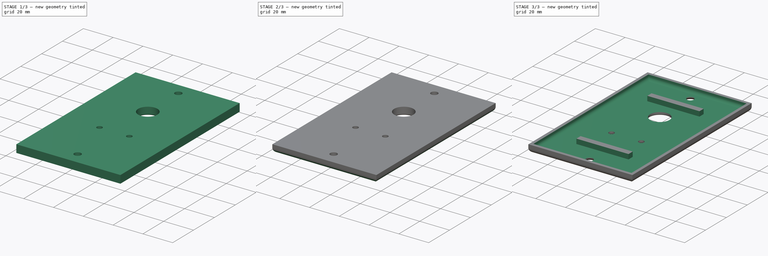
[diagram: build sequence overview — one tinted view per stage of 3, left to right]
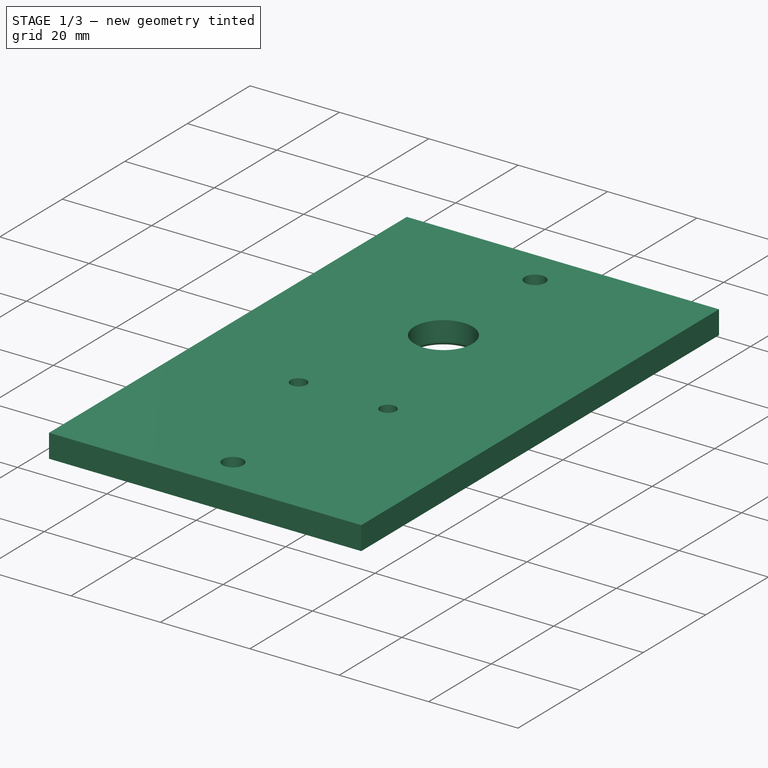
[diagram: stage 1 of 3 — iso view after this stage's code; geometry added in this stage tinted green]
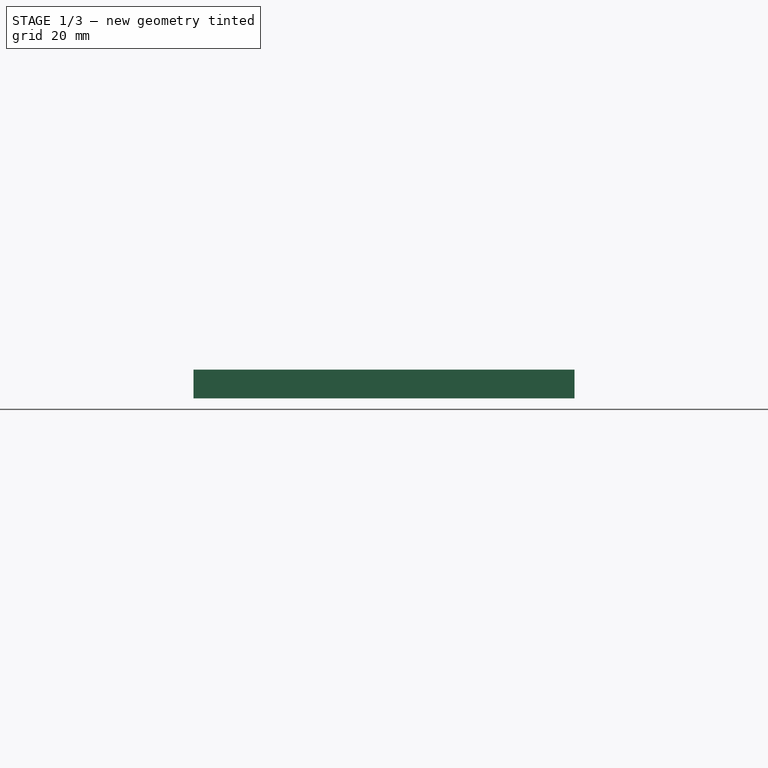
[diagram: stage 1 of 3 — front view after this stage's code; geometry added in this stage tinted green]
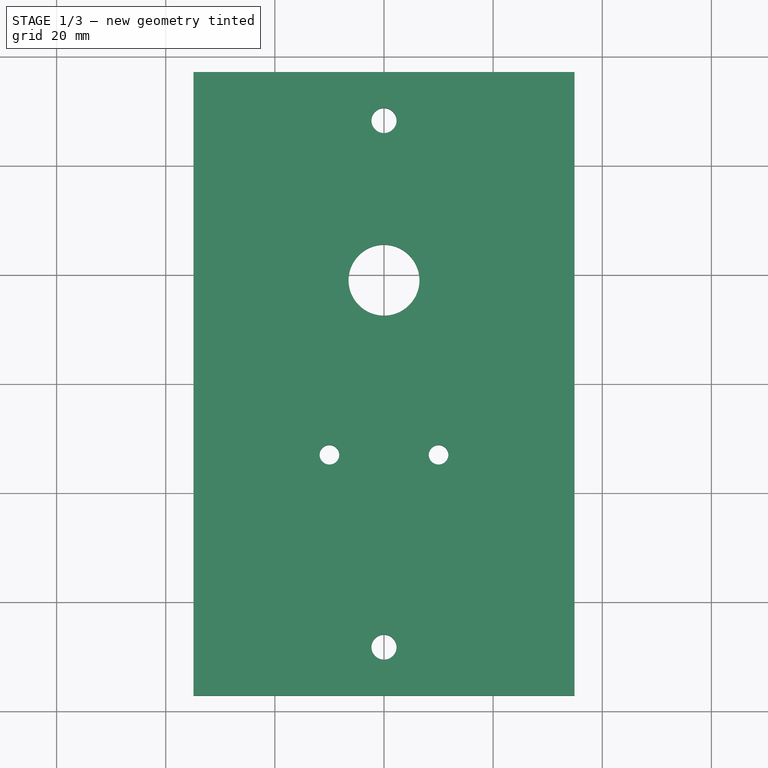
[diagram: stage 1 of 3 — top view after this stage's code; geometry added in this stage tinted green]
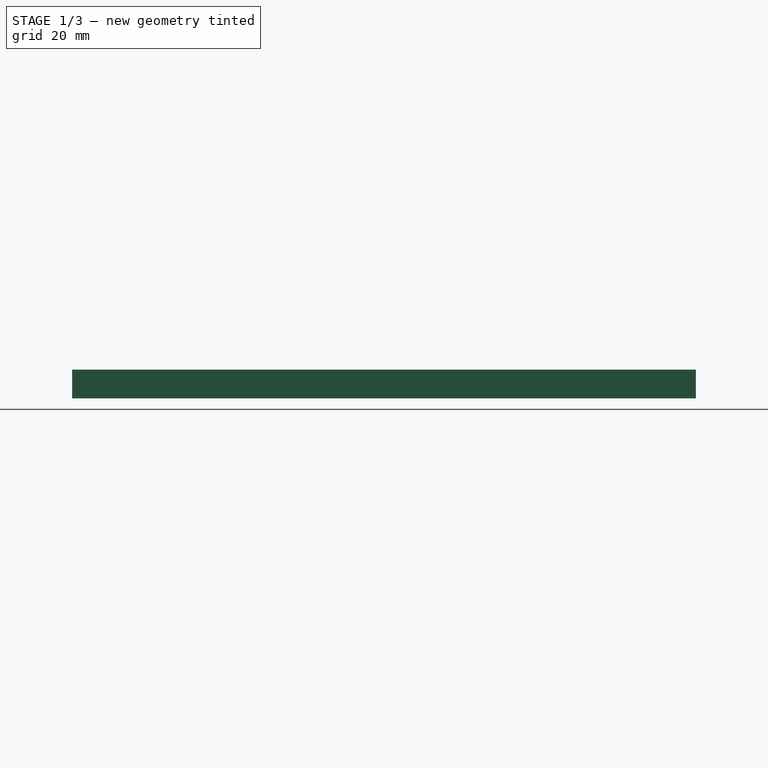
[diagram: stage 1 of 3 — right view after this stage's code; geometry added in this stage tinted green]
FCSTD DOCUMENT  (FreeCAD 0.21R33771 (Git))
Label: YesTrlrOneGang
License: All rights reserved
LicenseURL: http://en.wikipedia.org/wiki/All_rights_reserved
objects: PartDesign::Fillet×4, Sketcher::SketchObject×2, Spreadsheet::Sheet×1, PartDesign::Pad×1, PartDesign::Chamfer×1, PartDesign::Pocket×1, PartDesign::Body×1, App::Part×1
note: 17 computed .brp shape members not serialized (recipe doc carries the construction recipe); baked Part::Feature solids carry a one-line shape summary decoded from their .brp

FEATURE [Spreadsheet::Sheet] Spreadsheet  label="s"
  cells = A1='width; B1(width)=69.85; A2='height; B2(height)=114.3; A3='depth; B3(depth)=5.25; A5='fhole_diameter; B5(fhole_diameter)=13; A6='wire_diameter; B6(wire_diameter)=3.6; A8='screw_diameter; B8(screw_diameter)=4.6; A9='screw_distance; B9(screw_distance)=96.52; A11='wall_thickness; B11(wall_thickness)=2
FEATURE [Sketcher::SketchObject] Sketch
  FullyConstrained = true
  MapMode = 5
  Support = -> [XY_Plane001]
  expr: Constraints[14] = <<s>>.screw_diameter
  expr: Constraints[15] = <<s>>.screw_distance
  expr: Constraints[16] = <<s>>.height / 2 - (<<s>>.height / 2 - <<s>>.screw_distance / 2)
  expr: Constraints[18] = <<s>>.fhole_diameter
  expr: Constraints[21] = <<s>>.wire_diameter
  expr: Constraints[8] = <<s>>.height
  expr: Constraints[9] = <<s>>.width
  sketch-geometry (9):
    g0: LineSegment StartX=-34.925 StartY=57.15 StartZ=0 EndX=34.925 EndY=57.15 EndZ=0
    g1: LineSegment StartX=34.925 StartY=57.15 StartZ=0 EndX=34.925 EndY=-57.15 EndZ=0
    g2: LineSegment StartX=34.925 StartY=-57.15 StartZ=0 EndX=-34.925 EndY=-57.15 EndZ=0
    g3: LineSegment StartX=-34.925 StartY=-57.15 StartZ=0 EndX=-34.925 EndY=57.15 EndZ=0
    g4: Circle CenterX=0 CenterY=48.26 CenterZ=0 NormalX=0 NormalY=0 NormalZ=1 AngleXU=0 Radius=2.3
    g5: Circle CenterX=0 CenterY=-48.26 CenterZ=0 NormalX=0 NormalY=0 NormalZ=1 AngleXU=0 Radius=2.3
    g6: Circle CenterX=0 CenterY=19 CenterZ=0 NormalX=0 NormalY=0 NormalZ=1 AngleXU=0 Radius=6.5
    g7: Circle CenterX=-10 CenterY=-13 CenterZ=0 NormalX=0 NormalY=0 NormalZ=1 AngleXU=0 Radius=1.8
    g8: Circle CenterX=10 CenterY=-13 CenterZ=0 NormalX=0 NormalY=0 NormalZ=1 AngleXU=0 Radius=1.8
  constraints (26):
    c: Coincident(g0,g1)
    c: Coincident(g1,g2)
    c: Coincident(g2,g3)
    c: Coincident(g3,g0)
    c: Horizontal(g0)
    c: Horizontal(g2)
    c: Vertical(g1)
    c: Vertical(g3)
    c: DistanceY(g3,g3) = 114.3
    c: DistanceX(g0,g0) = 69.85
    c: Symmetric(g0,g2,g-1)
    c: PointOnObject(g4,g-2)
    c: PointOnObject(g5,g-2)
    c: Equal(g4,g5)
    c: Diameter(g4) = 4.6
    c: DistanceY(g5,g4) = 96.52
    c: DistanceY(g-1,g4) = 48.26
    c: PointOnObject(g6,g-2)
    c: Diameter(g6) = 13
    c: DistanceY(g-1,g6) = 19
    c: Equal(g7,g8)
    c: Diameter(g7) = 3.6
    c: DistanceY(g8,g7) = 0
    c: DistanceX(g7,g8) = 20
    c: DistanceX(g7,g-1) = 10
    c: DistanceY(g8,g6) = 32
FEATURE [PartDesign::Pad] Pad  label="GangPad"
  Direction = (0,0,1)
  Length = 5.25
  Length2 = 10
  Profile = -> Sketch
  ReferenceAxis = -> Sketch [N_Axis]
  Type = 0
  expr: Length = <<s>>.depth
FEATURE [PartDesign::Fillet] Fillet  label="FHoleFillet"
  Base = -> Pad [Edge14]
  BaseFeature = -> Pad
  Radius = 1
  SupportTransform = false
  UseAllEdges = false
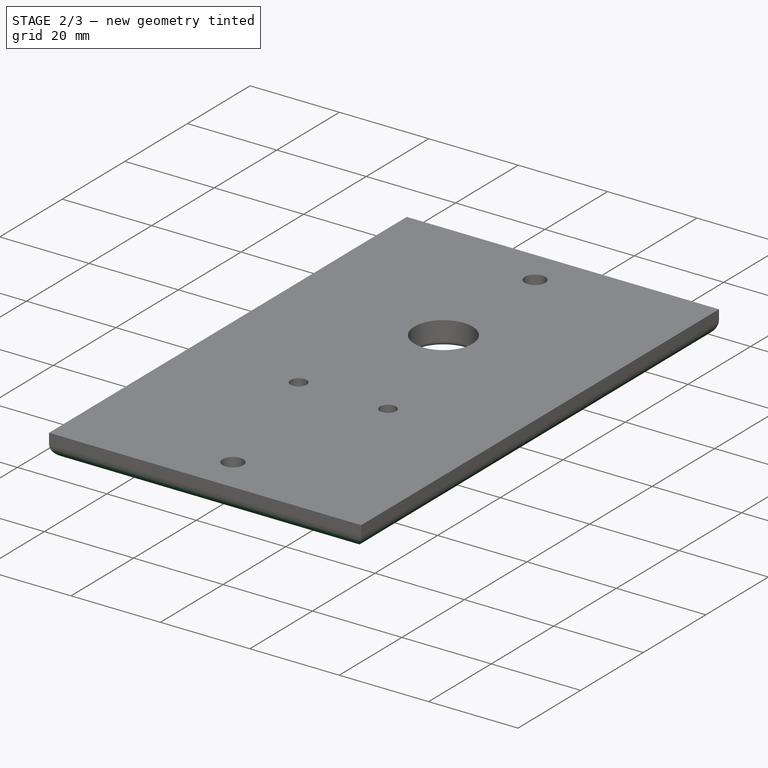
[diagram: stage 2 of 3 — iso view after this stage's code; geometry added in this stage tinted green]
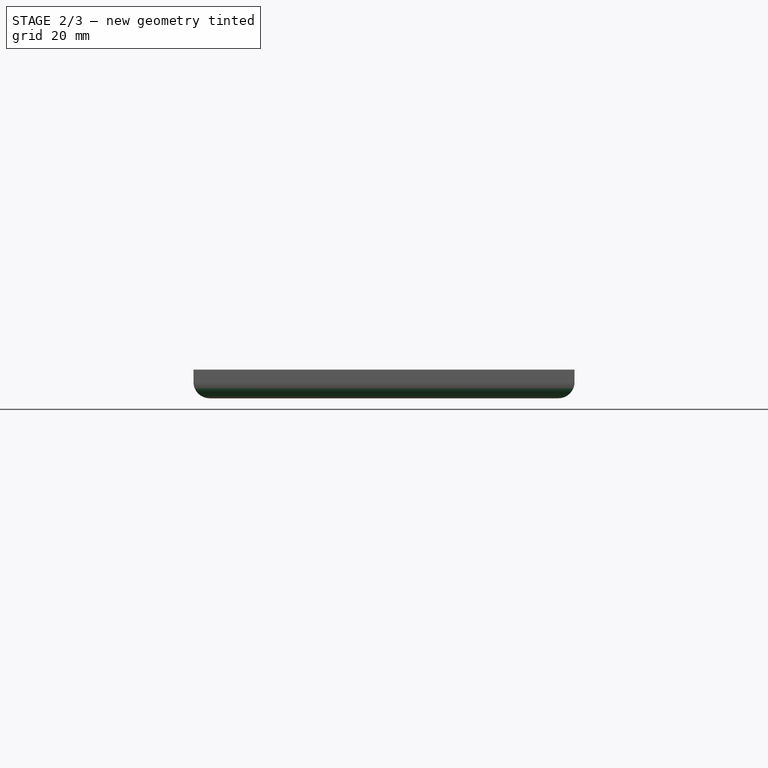
[diagram: stage 2 of 3 — front view after this stage's code; geometry added in this stage tinted green]
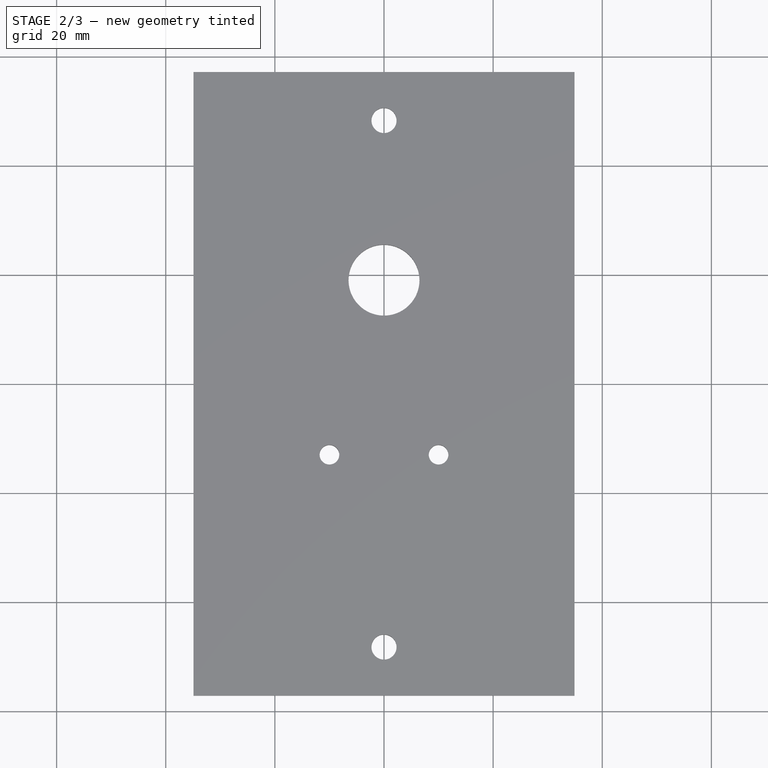
[diagram: stage 2 of 3 — top view after this stage's code; geometry added in this stage tinted green]
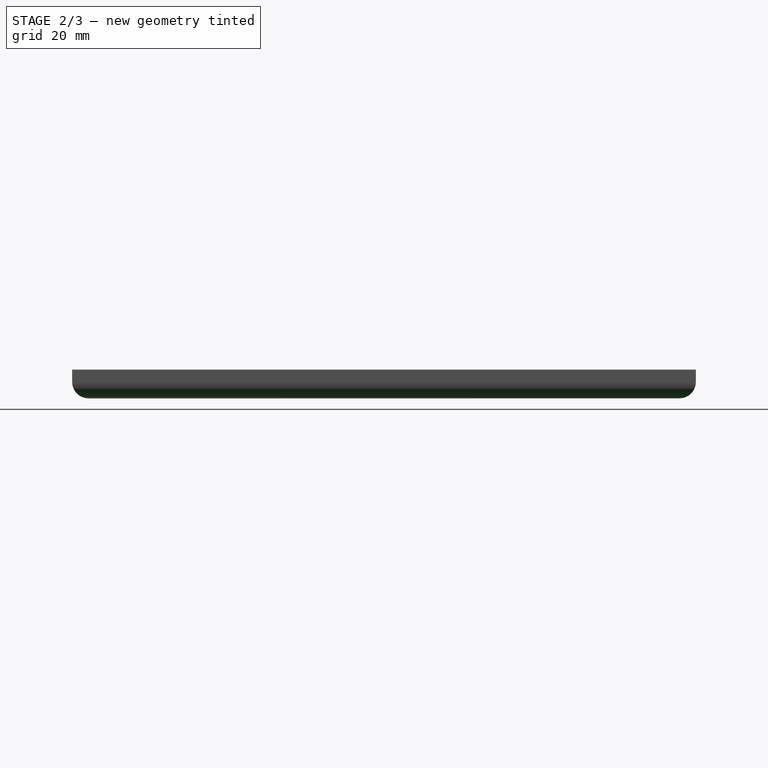
[diagram: stage 2 of 3 — right view after this stage's code; geometry added in this stage tinted green]
FEATURE [PartDesign::Chamfer] Chamfer  label="ScrewHoleChamfer"
  Angle = 45
  Base = -> Fillet [Edge19,Edge18]
  BaseFeature = -> Fillet
  ChamferType = 0
  FlipDirection = false
  Size = 1.5
  Size2 = 1
  SupportTransform = false
  UseAllEdges = false
FEATURE [PartDesign::Fillet] Fillet001  label="WireFillet"
  Base = -> Chamfer [Edge8,Edge7]
  BaseFeature = -> Chamfer
  Radius = 1
  SupportTransform = false
  UseAllEdges = false
FEATURE [PartDesign::Fillet] Fillet002  label="EdgeFillet"
  Base = -> Fillet001 [Edge4,Edge7,Edge5,Edge6]
  BaseFeature = -> Fillet001
  Radius = 3
  SupportTransform = false
  UseAllEdges = false
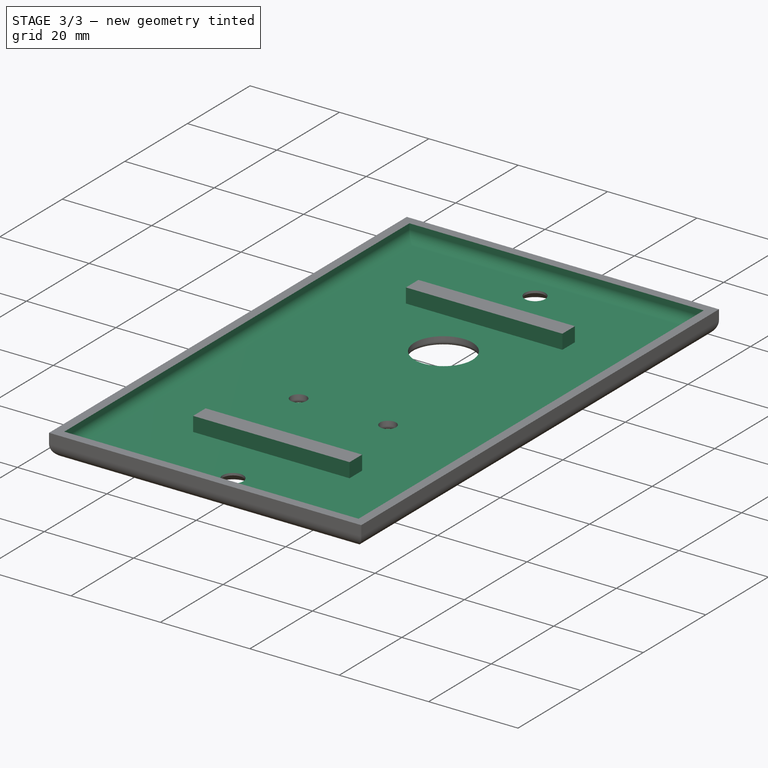
[diagram: stage 3 of 3 — iso view after this stage's code; geometry added in this stage tinted green]
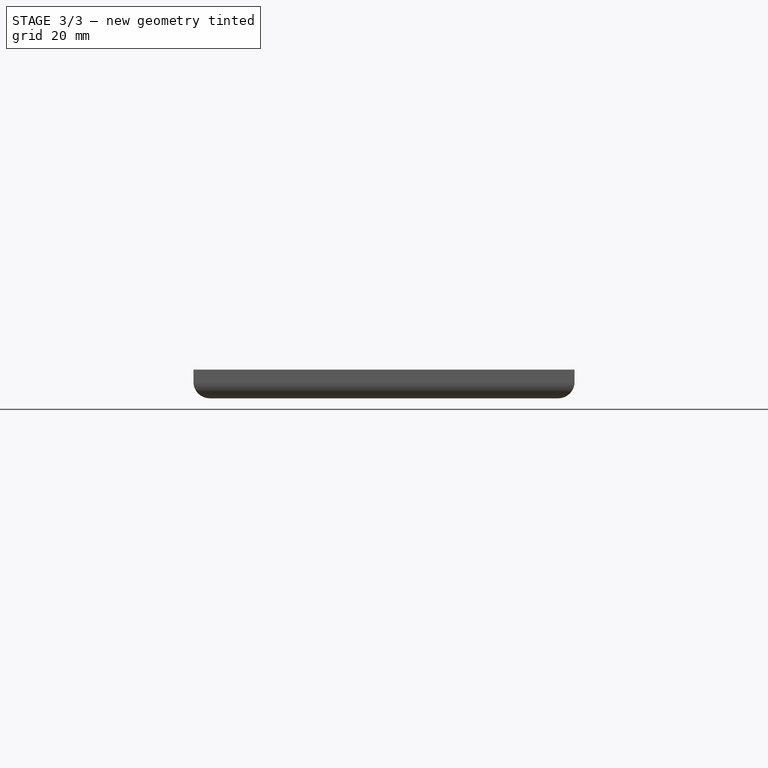
[diagram: stage 3 of 3 — front view after this stage's code; geometry added in this stage tinted green]
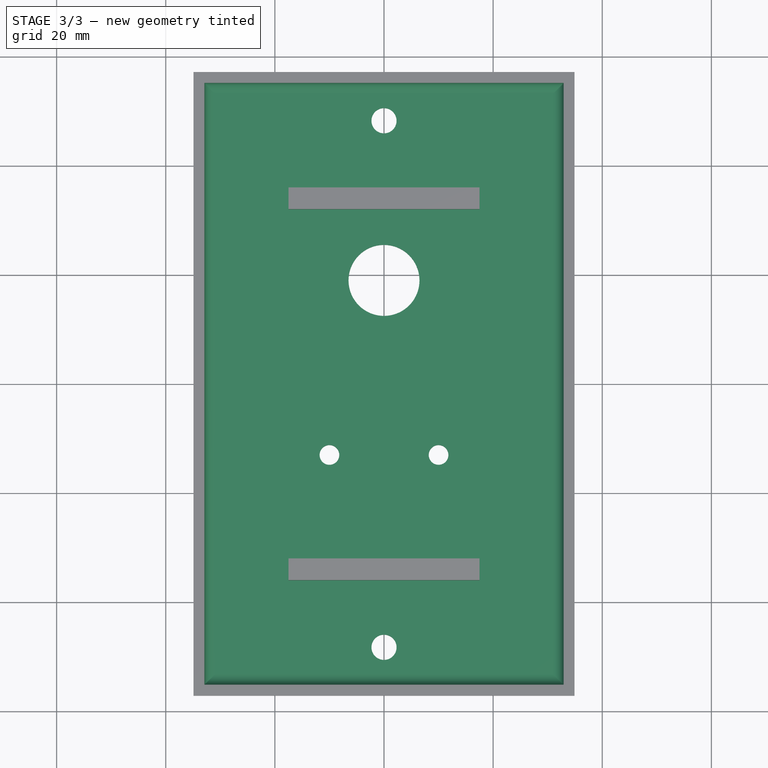
[diagram: stage 3 of 3 — top view after this stage's code; geometry added in this stage tinted green]
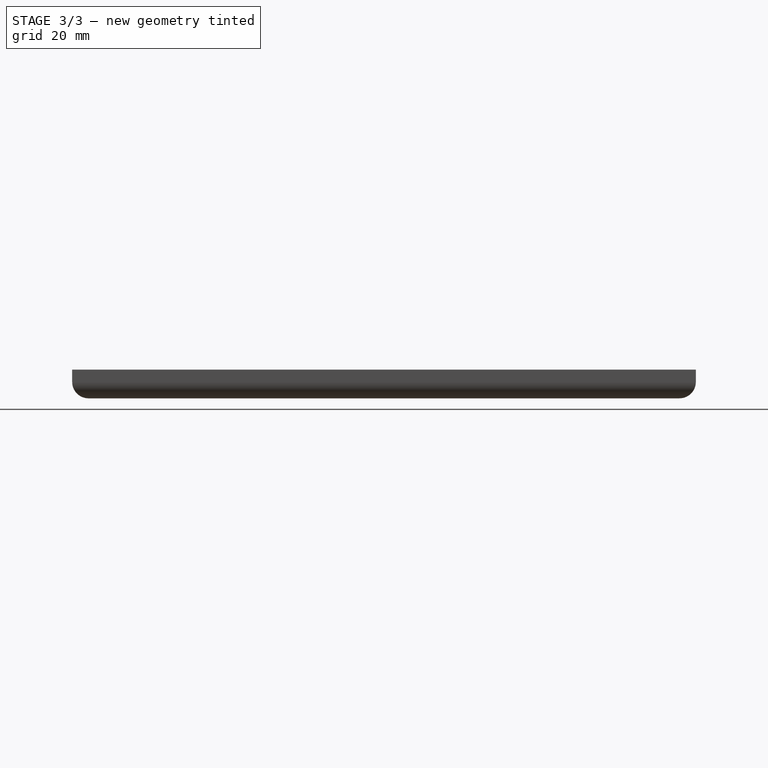
[diagram: stage 3 of 3 — right view after this stage's code; geometry added in this stage tinted green]
FEATURE [Sketcher::SketchObject] Sketch001
  FullyConstrained = true
  MapMode = 5
  Placement = pos=(0,0,5.25) rot=(0,0,1;0rad)
  Support = -> [Fillet002]
  expr: Constraints[8] = <<s>>.width - <<s>>.wall_thickness * 2
  expr: Constraints[9] = <<s>>.height - <<s>>.wall_thickness * 2
  sketch-geometry (12):
    g0: LineSegment StartX=-32.925 StartY=55.15 StartZ=0 EndX=32.925 EndY=55.15 EndZ=0
    g1: LineSegment StartX=32.925 StartY=55.15 StartZ=0 EndX=32.925 EndY=-55.15 EndZ=0
    g2: LineSegment StartX=32.925 StartY=-55.15 StartZ=0 EndX=-32.925 EndY=-55.15 EndZ=0
    g3: LineSegment StartX=-32.925 StartY=-55.15 StartZ=0 EndX=-32.925 EndY=55.15 EndZ=0
    g4: LineSegment StartX=-17.5 StartY=36 StartZ=0 EndX=17.5 EndY=36 EndZ=0
    g5: LineSegment StartX=17.5 StartY=36 StartZ=0 EndX=17.5 EndY=32 EndZ=0
    g6: LineSegment StartX=17.5 StartY=32 StartZ=0 EndX=-17.5 EndY=32 EndZ=0
    g7: LineSegment StartX=-17.5 StartY=32 StartZ=0 EndX=-17.5 EndY=36 EndZ=0
    g8: LineSegment StartX=-17.5 StartY=-32 StartZ=0 EndX=17.5 EndY=-32 EndZ=0
    g9: LineSegment StartX=17.5 StartY=-32 StartZ=0 EndX=17.5 EndY=-36 EndZ=0
    g10: LineSegment StartX=17.5 StartY=-36 StartZ=0 EndX=-17.5 EndY=-36 EndZ=0
    g11: LineSegment StartX=-17.5 StartY=-36 StartZ=0 EndX=-17.5 EndY=-32 EndZ=0
  constraints (35):
    c: Coincident(g0,g1)
    c: Coincident(g1,g2)
    c: Coincident(g2,g3)
    c: Coincident(g3,g0)
    c: Horizontal(g0)
    c: Horizontal(g2)
    c: Vertical(g1)
    c: Vertical(g3)
    c: DistanceX(g0,g0) = 65.85
    c: DistanceY(g3,g3) = 110.3
    c: Symmetric(g0,g2,g-1)
    c: Coincident(g4,g5)
    c: Coincident(g5,g6)
    c: Coincident(g6,g7)
    c: Coincident(g7,g4)
    c: Horizontal(g4)
    c: Horizontal(g6)
    c: Vertical(g5)
    c: Vertical(g7)
    c: Coincident(g8,g9)
    c: Coincident(g9,g10)
    c: Coincident(g10,g11)
    c: Coincident(g11,g8)
    c: Horizontal(g8)
    c: Horizontal(g10)
    c: Vertical(g9)
    c: Vertical(g11)
    c: DistanceX(g4,g4) = 35
    c: DistanceX(g8,g8) = 35
    c: DistanceY(g5,g5) = 4
    c: DistanceY(g9,g9) = 4
    c: DistanceX(g8,g6) = 0
    c: DistanceY(g8,g6) = 64
    c: DistanceY(g-1,g6) = 32
    c: DistanceX(g8,g-1) = 17.5
FEATURE [PartDesign::Pocket] Pocket  label="InsidePocket"
  BaseFeature = -> Fillet002
  Direction = (0,0,-1)
  Length = 3.25
  Length2 = 5
  Profile = -> Sketch001
  ReferenceAxis = -> Sketch001 [N_Axis]
  Type = 0
  expr: Length = <<s>>.depth - <<s>>.wall_thickness
FEATURE [PartDesign::Fillet] Fillet003  label="InsideFillet"
  Base = -> Pocket [Edge51,Edge50,Edge52,Edge53]
  BaseFeature = -> Pocket
  Radius = 2
  SupportTransform = false
  UseAllEdges = false
FEATURE [PartDesign::Body] Body  label="OneGangBody"
  Group = -> [Sketch,Pad,Fillet,Chamfer,Fillet001,Fillet002,Sketch001,Pocket,Fillet003]
  Origin = -> Origin001
  Tip = -> Fillet003
FEATURE [App::Part] Part  label="OneGangPart"
  Group = -> [Body]
  Origin = -> Origin
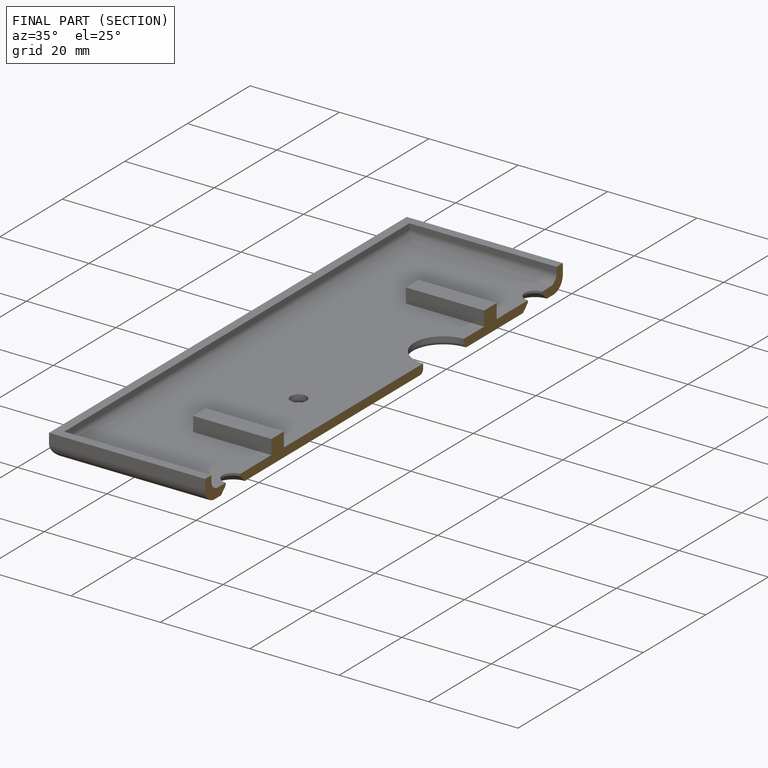
[diagram: finished part — half-section view (interior)]
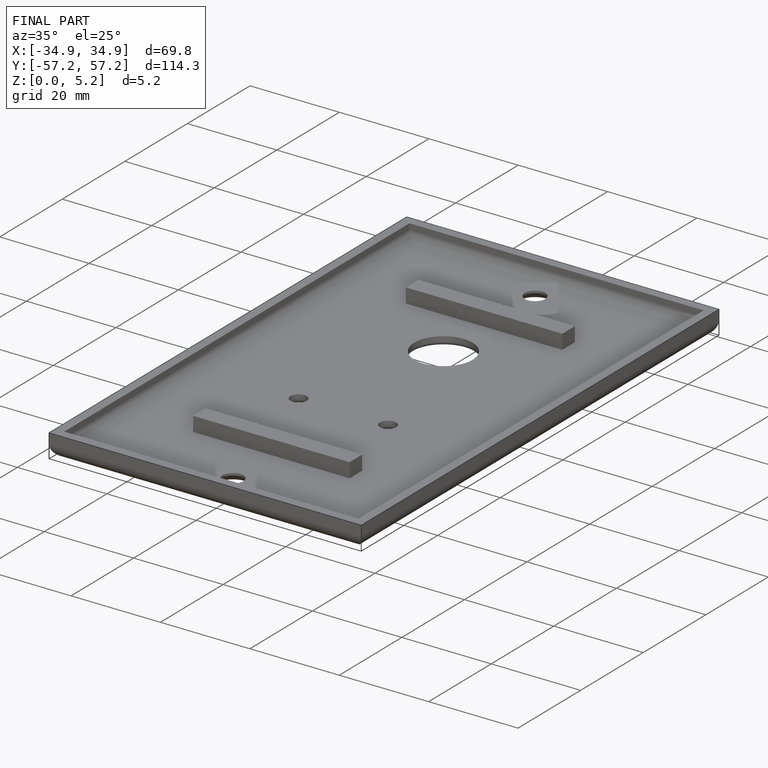
[diagram: finished part — iso view with bounding-box wireframe]
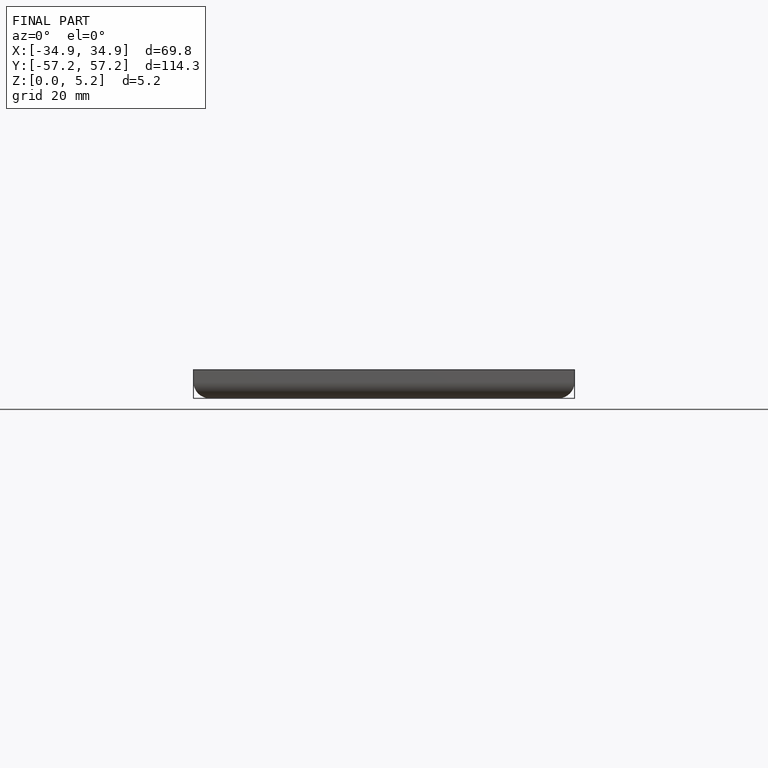
[diagram: finished part — front view with bounding-box wireframe]
